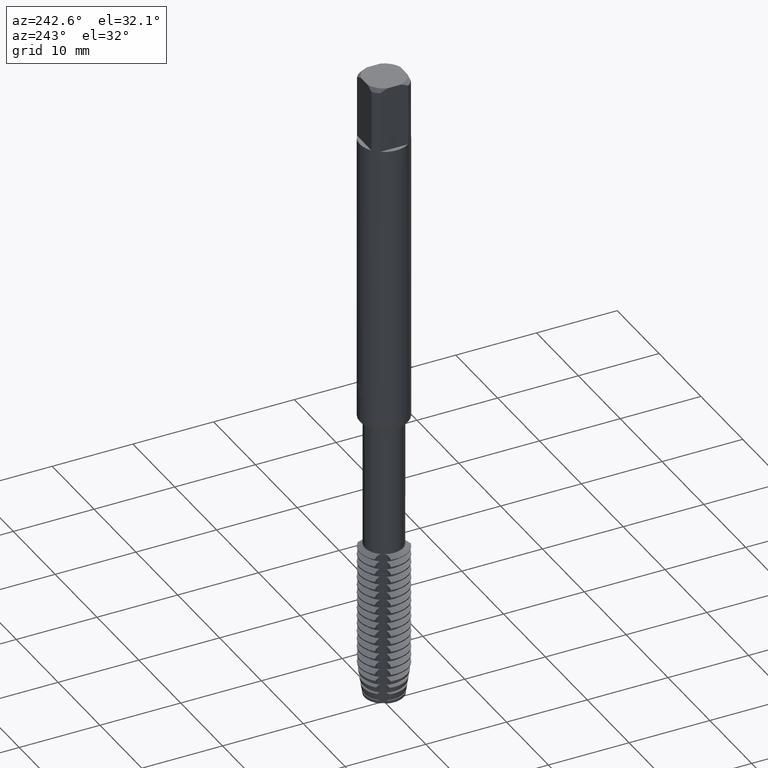
[diagram: clean part render]
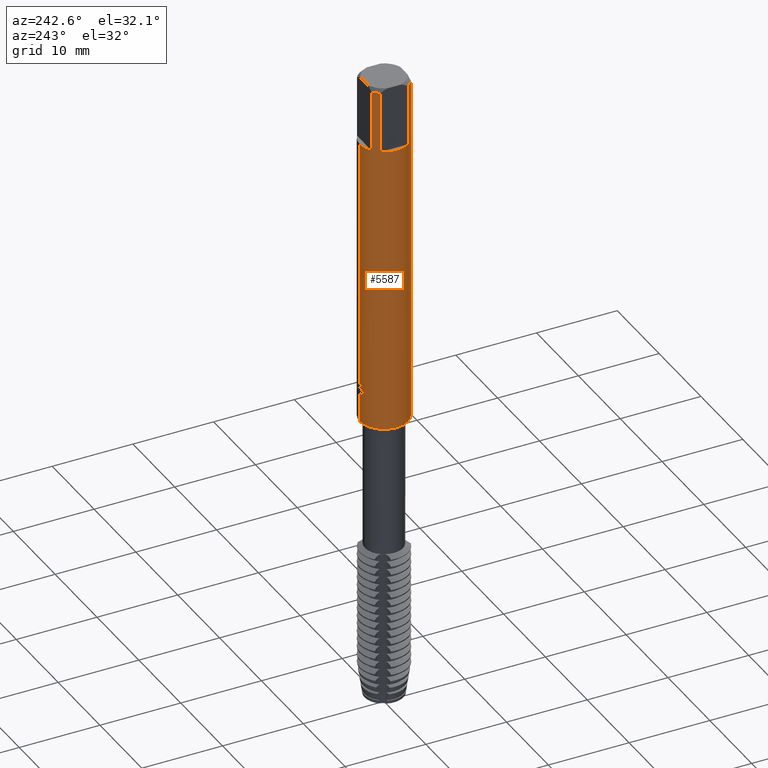
[diagram: same view with one face highlighted and labeled with its STEP entity id]
A machine part, auxiliary view. The second image highlights one B-rep face of the part: STEP entity #5587.
In plain terms, the highlighted cylindrical surface (edge-blend (fillet) strip) has radius 3 mm, axis along (-0, -0, 1).
Its self-contained STEP definition (entity closure, byte-faithful):
#2527=VERTEX_POINT('',#7301);
#2647=EDGE_CURVE('',#2835,#6529,#7437,.T.);
#2835=VERTEX_POINT('',#7644);
#3137=EDGE_CURVE('',#6299,#5379,#7977,.T.);
#3343=VERTEX_POINT('',#8202);
#3463=VERTEX_POINT('',#8333);
#3539=EDGE_CURVE('',#5019,#6299,#8416,.T.);
#3799=EDGE_CURVE('',#3343,#4759,#8695,.T.);
#3853=EDGE_CURVE('',#5497,#3463,#8755,.T.);
#4113=EDGE_CURVE('',#2527,#6405,#9045,.T.);
#4269=EDGE_CURVE('',#6183,#3343,#9216,.T.);
#4303=EDGE_CURVE('',#6037,#5497,#9253,.T.);
#4421=VERTEX_POINT('',#9381);
#4425=EDGE_CURVE('',#5379,#7023,#9385,.T.);
#4571=EDGE_CURVE('',#6529,#6777,#9543,.T.);
#4711=VERTEX_POINT('',#9699);
#4713=EDGE_CURVE('',#4421,#2835,#9701,.T.);
#4749=EDGE_CURVE('',#4759,#2527,#9742,.T.);
#4759=VERTEX_POINT('',#9754);
#4981=EDGE_CURVE('',#7043,#4421,#9997,.T.);
#5019=VERTEX_POINT('',#10038);
#5085=EDGE_CURVE('',#6129,#5019,#10108,.T.);
#5351=EDGE_CURVE('',#3463,#6129,#10397,.T.);
#5379=VERTEX_POINT('',#10427);
#5497=VERTEX_POINT('',#10552);
#5535=EDGE_CURVE('',#6405,#4711,#10594,.T.);
#5587=ADVANCED_FACE('',(#10652),#10653,.T.);
#5629=EDGE_CURVE('',#4711,#6819,#10697,.T.);
#5897=EDGE_CURVE('',#6777,#6183,#10997,.T.);
#6037=VERTEX_POINT('',#11148);
#6129=VERTEX_POINT('',#11244);
#6183=VERTEX_POINT('',#11303);
#6247=EDGE_CURVE('',#7023,#7043,#11373,.T.);
#6299=VERTEX_POINT('',#11433);
#6377=EDGE_CURVE('',#6037,#6819,#11514,.T.);
#6405=VERTEX_POINT('',#11546);
#6529=VERTEX_POINT('',#11671);
#6777=VERTEX_POINT('',#11942);
#6819=VERTEX_POINT('',#11986);
#7023=VERTEX_POINT('',#12207);
#7043=VERTEX_POINT('',#12228);
#7301=CARTESIAN_POINT('',(-3.67369332217817E-016,3.0,-39.5277346801947));
#7437=LINE('',#12804,#12805);
#7644=CARTESIAN_POINT('',(-3.67381906146713E-016,3.0,-8.0));
#7977=CIRCLE('',#13771,3.0);
#8202=CARTESIAN_POINT('',(-0.621044042345276,2.93501350890715,-38.6902733192182));
#8333=CARTESIAN_POINT('',(-1.73132896931808,-2.45,-8.0));
#8416=LINE('',#14519,#14520);
#8695=B_SPLINE_CURVE_WITH_KNOTS('',3,(#15045,#15046,#15047,#15048,#15049,#15050,#15051,#15052,#15053,#15054,#15055,#15056,#15057,#15058),.UNSPECIFIED.,.F.,.F.,(4,2,2,2,2,2,4),(1.87999836018882,2.14840403024698,2.41680970030514,2.6852153703633,2.95307215785743,3.22092894535156,3.49027513061082),.UNSPECIFIED.);
#8755=CIRCLE('',#15172,3.0);
#9045=ELLIPSE('',#15706,3.34478529612858,3.0);
#9216=CIRCLE('',#15982,3.0);
#9253=LINE('',#16078,#16079);
#9381=CARTESIAN_POINT('',(-1.73132896931808,2.45,-8.0));
#9385=LINE('',#16344,#16345);
#9543=B_SPLINE_CURVE_WITH_KNOTS('',3,(#16590,#16591,#16592,#16593,#16594,#16595,#16596,#16597,#16598,#16599,#16600,#16601,#16602,#16603,#16604,#16605,#16606,#16607,#16608,#16609,#16610,#16611,#16612,#16613,#16614,#16615,#16616),.UNSPECIFIED.,.F.,.F.,(4,2,3,2,2,2,2,2,2,2,2,2,4),(-0.325491662881047,-0.162745831440524,0.0,0.162745831440523,0.325491662881047,0.48857928896217,0.651666915043293,0.814181075788761,0.97669523653423,1.13937860219068,1.30206196784712,1.46474533350356,1.62742869916001),.UNSPECIFIED.);
#9699=CARTESIAN_POINT('',(1.02911540261998E-015,2.99999999999999,-40.318615216062));
#9701=CIRCLE('',#16867,3.0);
#9742=LINE('',#16922,#16923);
#9754=CARTESIAN_POINT('',(3.38846304659749E-016,3.0,-39.4000480931129));
#9997=LINE('',#17346,#17347);
#10038=CARTESIAN_POINT('',(-2.45,-1.73132896931808,-0.399999999999999));
#10108=CIRCLE('',#17550,3.0);
#10397=LINE('',#17996,#17997);
#10427=CARTESIAN_POINT('',(-2.45,1.73132896931808,-8.0));
#10552=CARTESIAN_POINT('',(3.67381906146713E-016,-3.0,-8.0));
#10594=B_SPLINE_CURVE_WITH_KNOTS('',3,(#18367,#18368,#18369,#18370,#18371,#18372,#18373,#18374,#18375,#18376),.UNSPECIFIED.,.F.,.F.,(4,2,2,2,4),(3.33952438176389,3.71068639626914,4.08193290438485,4.45317941250055,4.82387408804259),.UNSPECIFIED.);
#10652=FACE_OUTER_BOUND('',#18478,.T.);
#10653=CYLINDRICAL_SURFACE('',#18479,3.0);
#10697=LINE('',#18573,#18574);
#10997=B_SPLINE_CURVE_WITH_KNOTS('',3,(#19075,#19076,#19077,#19078,#19079,#19080,#19081,#19082,#19083,#19084,#19085,#19086,#19087,#19088,#19089,#19090,#19091,#19092,#19093,#19094,#19095,#19096,#19097,#19098,#19099,#19100,#19101),.UNSPECIFIED.,.F.,.F.,(4,2,3,2,2,2,2,2,2,2,2,2,4),(-0.325491662881047,-0.162745831440524,0.0,0.162745831440523,0.325491662881047,0.48857928896217,0.651666915043293,0.814181075788761,0.97669523653423,1.13937860219068,1.30206196784712,1.46474533350356,1.62742869916001),.UNSPECIFIED.);
#11148=CARTESIAN_POINT('',(3.67381906146713E-016,-3.0,-44.0));
#11244=CARTESIAN_POINT('',(-1.73132896931808,-2.45,-0.399999999999999));
#11303=CARTESIAN_POINT('',(-0.337400394136807,2.98096644966634,-38.6902733192182));
#11373=CIRCLE('',#19784,3.0);
#11433=CARTESIAN_POINT('',(-2.45,-1.73132896931808,-8.0));
#11514=CIRCLE('',#20017,3.0);
#11546=CARTESIAN_POINT('',(-0.802231651465797,2.89074806536067,-39.9232482345277));
#11671=CARTESIAN_POINT('',(-1.1292194788514E-014,3.0,-39.1139612870646));
#11942=CARTESIAN_POINT('',(-0.291827366629825,2.98577239388502,-38.8859702489804));
#11986=CARTESIAN_POINT('',(0.0,3.0,-44.0));
#12207=CARTESIAN_POINT('',(-2.45,1.73132896931808,-0.399999999999999));
#12228=CARTESIAN_POINT('',(-1.73132896931808,2.45,-0.399999999999999));
#12804=CARTESIAN_POINT('',(-3.67381906146713E-016,3.0,-22.2));
#12805=VECTOR('',#21784,1.0);
#13771=AXIS2_PLACEMENT_3D('',#22401,#22402,#22403);
#14519=CARTESIAN_POINT('',(-2.45,-1.73132896931808,-4.2));
#14520=VECTOR('',#22849,1.0);
#15045=CARTESIAN_POINT('',(-0.566815594805735,2.94596674819744,-38.4236150957041));
#15046=CARTESIAN_POINT('',(-0.603122291768812,2.93898119928694,-38.5110702631868));
#15047=CARTESIAN_POINT('',(-0.621065410741118,2.93500898730838,-38.6063125597536));
#15048=CARTESIAN_POINT('',(-0.621065410741118,2.93500898730838,-38.7852496731257));
#15049=CARTESIAN_POINT('',(-0.603122291768812,2.93898119928694,-38.8804919696925));
#15050=CARTESIAN_POINT('',(-0.530508897842667,2.95295229710796,-39.055402304658));
#15051=CARTESIAN_POINT('',(-0.475852290631327,2.96270316106731,-39.1350957389974));
#15052=CARTESIAN_POINT('',(-0.349984167638816,2.98019126514534,-39.260811405771));
#15053=CARTESIAN_POINT('',(-0.270336314519269,2.98907692835774,-39.3153432148754));
#15054=CARTESIAN_POINT('',(-0.0955895793377411,2.99975419634472,-39.3877548978209));
#15055=CARTESIAN_POINT('',(-0.00047184449299921,3.00132832175784,-39.405621178052));
#15056=CARTESIAN_POINT('',(0.178517394741791,2.99602943216305,-39.405621178052));
#15057=CARTESIAN_POINT('',(0.273865411703844,2.98877153009163,-39.3875766213428));
#15058=CARTESIAN_POINT('',(0.361301135447278,2.97816411393404,-39.3512216005985));
#15172=AXIS2_PLACEMENT_3D('',#23185,#23186,#23187);
#15706=AXIS2_PLACEMENT_3D('',#23544,#23545,#23546);
#15982=AXIS2_PLACEMENT_3D('',#23734,#23735,#23736);
#16078=CARTESIAN_POINT('',(3.67381906146713E-016,-3.0,-22.2));
#16079=VECTOR('',#23769,1.0);
#16344=CARTESIAN_POINT('',(-2.45,1.73132896931808,-4.2));
#16345=VECTOR('',#23889,1.0);
#16590=CARTESIAN_POINT('',(0.399073662054701,2.9733382270193,-38.3881578074487));
#16591=CARTESIAN_POINT('',(0.437241118172757,2.96821549111729,-38.4263666363942));
#16592=CARTESIAN_POINT('',(0.470378499662075,2.96297848846858,-38.4747661621587));
#16593=CARTESIAN_POINT('',(0.514381160077739,2.95565719997762,-38.5809468503984));
#16594=CARTESIAN_POINT('',(0.525240588713139,2.95366252709552,-38.6387365970719));
#16595=CARTESIAN_POINT('',(0.525240588713139,2.95366252709552,-38.6929852075521));
#16596=CARTESIAN_POINT('',(0.525240588713139,2.95366252709552,-38.7472338180322));
#16597=CARTESIAN_POINT('',(0.514381160077739,2.95565719997762,-38.8050235647058));
#16598=CARTESIAN_POINT('',(0.470378499662075,2.96297848846858,-38.9112042529454));
#16599=CARTESIAN_POINT('',(0.437241118172758,2.96821549111729,-38.95960377871));
#16600=CARTESIAN_POINT('',(0.360826047619651,2.97847172156046,-39.0361016818081));
#16601=CARTESIAN_POINT('',(0.312384718269332,2.98416839722865,-39.0693131706837));
#16602=CARTESIAN_POINT('',(0.206102293488516,2.99338722515065,-39.1134202069633));
#16603=CARTESIAN_POINT('',(0.148251731896476,2.99682777449178,-39.1243099616648));
#16604=CARTESIAN_POINT('',(0.0397709987252813,3.00022545933147,-39.1243099616648));
#16605=CARTESIAN_POINT('',(-0.0179912012444218,3.00041652694693,-39.1134886213906));
#16606=CARTESIAN_POINT('',(-0.124225517538505,2.99789776999505,-39.0694963705132));
#16607=CARTESIAN_POINT('',(-0.172700489972417,2.99527068292401,-39.0363276588386));
#16608=CARTESIAN_POINT('',(-0.249281669772502,2.9898718432363,-38.9597995158294));
#16609=CARTESIAN_POINT('',(-0.282493736677514,2.98675204362553,-38.9113123678398));
#16610=CARTESIAN_POINT('',(-0.326558647658045,2.98225584656319,-38.8050214521099));
#16611=CARTESIAN_POINT('',(-0.337408919512348,2.9809654847102,-38.7472129961042));
#16612=CARTESIAN_POINT('',(-0.337408919512347,2.9809654847102,-38.6387574189999));
#16613=CARTESIAN_POINT('',(-0.326558647658045,2.98225584656319,-38.5809489629942));
#16614=CARTESIAN_POINT('',(-0.282493736677516,2.98675204362553,-38.4746580472644));
#16615=CARTESIAN_POINT('',(-0.2492816697725,2.9898718432363,-38.4261708992748));
#16616=CARTESIAN_POINT('',(-0.210971156732432,2.9925726676268,-38.387886918428));
#16867=AXIS2_PLACEMENT_3D('',#24556,#24557,#24558);
#16922=CARTESIAN_POINT('',(-3.67381906146713E-016,3.0,-22.2));
#16923=VECTOR('',#24615,1.0);
#17346=CARTESIAN_POINT('',(-1.73132896931808,2.45,-4.2));
#17347=VECTOR('',#24890,1.0);
#17550=AXIS2_PLACEMENT_3D('',#24990,#24991,#24992);
#17996=CARTESIAN_POINT('',(-1.73132896931808,-2.45,-4.2));
#17997=VECTOR('',#25299,1.0);
#18367=CARTESIAN_POINT('',(-0.919321134391312,2.85566956279284,-39.7167514643836));
#18368=CARTESIAN_POINT('',(-0.869340333826626,2.87175979045446,-39.8369526818478));
#18369=CARTESIAN_POINT('',(-0.7943367658771,2.89428729416518,-39.946180348735));
#18370=CARTESIAN_POINT('',(-0.62190649826245,2.93617195165647,-40.1186756687858));
#18371=CARTESIAN_POINT('',(-0.512637169305662,2.95836427575571,-40.1937653794614));
#18372=CARTESIAN_POINT('',(-0.272101743389447,2.99009643596645,-40.2938340938058));
#18373=CARTESIAN_POINT('',(-0.140764146727553,2.99924977776393,-40.3187634001052));
#18374=CARTESIAN_POINT('',(0.106545602280532,3.0006526485303,-40.3187634001052));
#18375=CARTESIAN_POINT('',(0.237797441372153,2.9930118737714,-40.2939004779081));
#18376=CARTESIAN_POINT('',(0.358042092904169,2.97855768111158,-40.2439214764374));
#18478=EDGE_LOOP('',(#25542,#25543,#25544,#25545,#25546,#25547,#25548,#25549,#25550,#25551,#25552,#25553,#25554,#25555,#25556,#25557,#25558,#25559,#25560,#25561));
#18479=AXIS2_PLACEMENT_3D('',#25562,#25563,#25564);
#18573=CARTESIAN_POINT('',(-3.67381906146713E-016,3.0,-22.2));
#18574=VECTOR('',#25595,1.0);
#19075=CARTESIAN_POINT('',(0.399073662054701,2.9733382270193,-38.3881578074487));
#19076=CARTESIAN_POINT('',(0.437241118172757,2.96821549111729,-38.4263666363942));
#19077=CARTESIAN_POINT('',(0.470378499662075,2.96297848846858,-38.4747661621587));
#19078=CARTESIAN_POINT('',(0.514381160077739,2.95565719997762,-38.5809468503984));
#19079=CARTESIAN_POINT('',(0.525240588713139,2.95366252709552,-38.6387365970719));
#19080=CARTESIAN_POINT('',(0.525240588713139,2.95366252709552,-38.6929852075521));
#19081=CARTESIAN_POINT('',(0.525240588713139,2.95366252709552,-38.7472338180322));
#19082=CARTESIAN_POINT('',(0.514381160077739,2.95565719997762,-38.8050235647058));
#19083=CARTESIAN_POINT('',(0.470378499662075,2.96297848846858,-38.9112042529454));
#19084=CARTESIAN_POINT('',(0.437241118172758,2.96821549111729,-38.95960377871));
#19085=CARTESIAN_POINT('',(0.360826047619651,2.97847172156046,-39.0361016818081));
#19086=CARTESIAN_POINT('',(0.312384718269332,2.98416839722865,-39.0693131706837));
#19087=CARTESIAN_POINT('',(0.206102293488516,2.99338722515065,-39.1134202069633));
#19088=CARTESIAN_POINT('',(0.148251731896476,2.99682777449178,-39.1243099616648));
#19089=CARTESIAN_POINT('',(0.0397709987252813,3.00022545933147,-39.1243099616648));
#19090=CARTESIAN_POINT('',(-0.0179912012444218,3.00041652694693,-39.1134886213906));
#19091=CARTESIAN_POINT('',(-0.124225517538505,2.99789776999505,-39.0694963705132));
#19092=CARTESIAN_POINT('',(-0.172700489972417,2.99527068292401,-39.0363276588386));
#19093=CARTESIAN_POINT('',(-0.249281669772502,2.9898718432363,-38.9597995158294));
#19094=CARTESIAN_POINT('',(-0.282493736677514,2.98675204362553,-38.9113123678398));
#19095=CARTESIAN_POINT('',(-0.326558647658045,2.98225584656319,-38.8050214521099));
#19096=CARTESIAN_POINT('',(-0.337408919512348,2.9809654847102,-38.7472129961042));
#19097=CARTESIAN_POINT('',(-0.337408919512347,2.9809654847102,-38.6387574189999));
#19098=CARTESIAN_POINT('',(-0.326558647658045,2.98225584656319,-38.5809489629942));
#19099=CARTESIAN_POINT('',(-0.282493736677516,2.98675204362553,-38.4746580472644));
#19100=CARTESIAN_POINT('',(-0.2492816697725,2.9898718432363,-38.4261708992748));
#19101=CARTESIAN_POINT('',(-0.210971156732432,2.9925726676268,-38.387886918428));
#19784=AXIS2_PLACEMENT_3D('',#26481,#26482,#26483);
#20017=AXIS2_PLACEMENT_3D('',#26638,#26639,#26640);
#21784=DIRECTION('',(0.0,0.0,-1.0));
#22401=CARTESIAN_POINT('',(0.0,0.0,-8.0));
#22402=DIRECTION('',(0.0,0.0,-1.0));
#22403=DIRECTION('',(0.0,1.0,0.0));
#22849=DIRECTION('',(0.0,0.0,-1.0));
#23185=CARTESIAN_POINT('',(0.0,0.0,-8.0));
#23186=DIRECTION('',(0.0,0.0,-1.0));
#23187=DIRECTION('',(0.0,1.0,0.0));
#23544=CARTESIAN_POINT('',(0.0,0.0,-39.5277346801947));
#23545=DIRECTION('',(-0.442195774284071,0.0,0.896918556617774));
#23546=DIRECTION('',(0.896918556617774,-0.0,0.442195774284071));
#23734=CARTESIAN_POINT('',(0.0,0.0,-38.6902733192182));
#23735=DIRECTION('',(0.0,-0.0,1.0));
#23736=DIRECTION('',(0.0,1.0,0.0));
#23769=DIRECTION('',(-0.0,-0.0,1.0));
#23889=DIRECTION('',(-0.0,-0.0,1.0));
#24556=CARTESIAN_POINT('',(0.0,0.0,-8.0));
#24557=DIRECTION('',(0.0,0.0,-1.0));
#24558=DIRECTION('',(0.0,1.0,0.0));
#24615=DIRECTION('',(0.0,0.0,-1.0));
#24890=DIRECTION('',(0.0,0.0,-1.0));
#24990=CARTESIAN_POINT('',(0.0,0.0,-0.399999999999999));
#24991=DIRECTION('',(0.0,0.0,-1.0));
#24992=DIRECTION('',(0.0,1.0,0.0));
#25299=DIRECTION('',(-0.0,-0.0,1.0));
#25542=ORIENTED_EDGE('',*,*,#2647,.T.);
#25543=ORIENTED_EDGE('',*,*,#4571,.T.);
#25544=ORIENTED_EDGE('',*,*,#5897,.T.);
#25545=ORIENTED_EDGE('',*,*,#4269,.T.);
#25546=ORIENTED_EDGE('',*,*,#3799,.T.);
#25547=ORIENTED_EDGE('',*,*,#4749,.T.);
#25548=ORIENTED_EDGE('',*,*,#4113,.T.);
#25549=ORIENTED_EDGE('',*,*,#5535,.T.);
#25550=ORIENTED_EDGE('',*,*,#5629,.T.);
#25551=ORIENTED_EDGE('',*,*,#6377,.F.);
#25552=ORIENTED_EDGE('',*,*,#4303,.T.);
#25553=ORIENTED_EDGE('',*,*,#3853,.T.);
#25554=ORIENTED_EDGE('',*,*,#5351,.T.);
#25555=ORIENTED_EDGE('',*,*,#5085,.T.);
#25556=ORIENTED_EDGE('',*,*,#3539,.T.);
#25557=ORIENTED_EDGE('',*,*,#3137,.T.);
#25558=ORIENTED_EDGE('',*,*,#4425,.T.);
#25559=ORIENTED_EDGE('',*,*,#6247,.T.);
#25560=ORIENTED_EDGE('',*,*,#4981,.T.);
#25561=ORIENTED_EDGE('',*,*,#4713,.T.);
#25562=CARTESIAN_POINT('',(0.0,0.0,-22.2));
#25563=DIRECTION('',(-0.0,-0.0,1.0));
#25564=DIRECTION('',(0.0,1.0,0.0));
#25595=DIRECTION('',(0.0,0.0,-1.0));
#26481=CARTESIAN_POINT('',(0.0,0.0,-0.399999999999999));
#26482=DIRECTION('',(0.0,0.0,-1.0));
#26483=DIRECTION('',(0.0,1.0,0.0));
#26638=CARTESIAN_POINT('',(0.0,0.0,-44.0));
#26639=DIRECTION('',(0.0,0.0,-1.0));
#26640=DIRECTION('',(0.0,1.0,0.0));